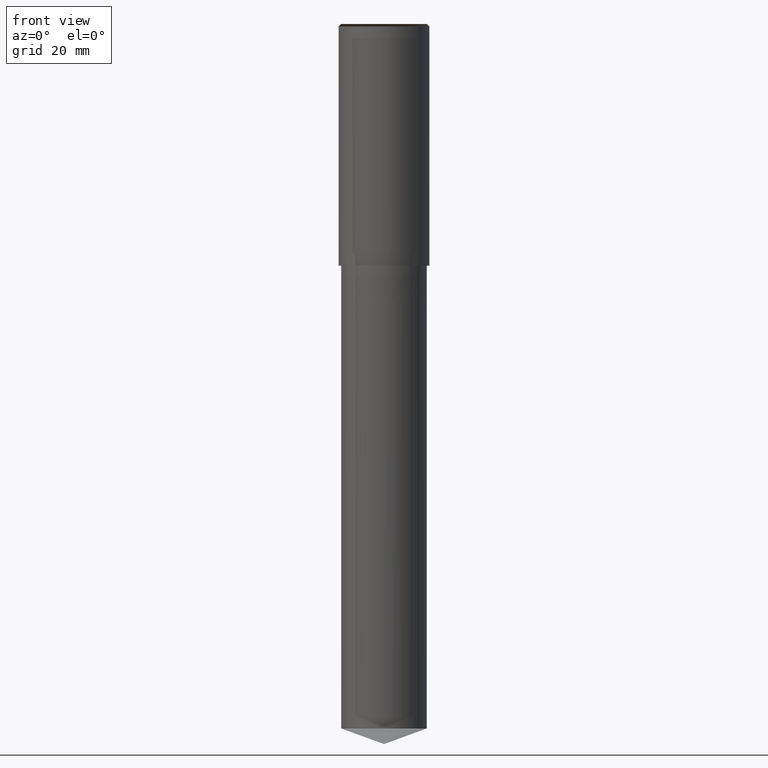
[diagram: clean part render]
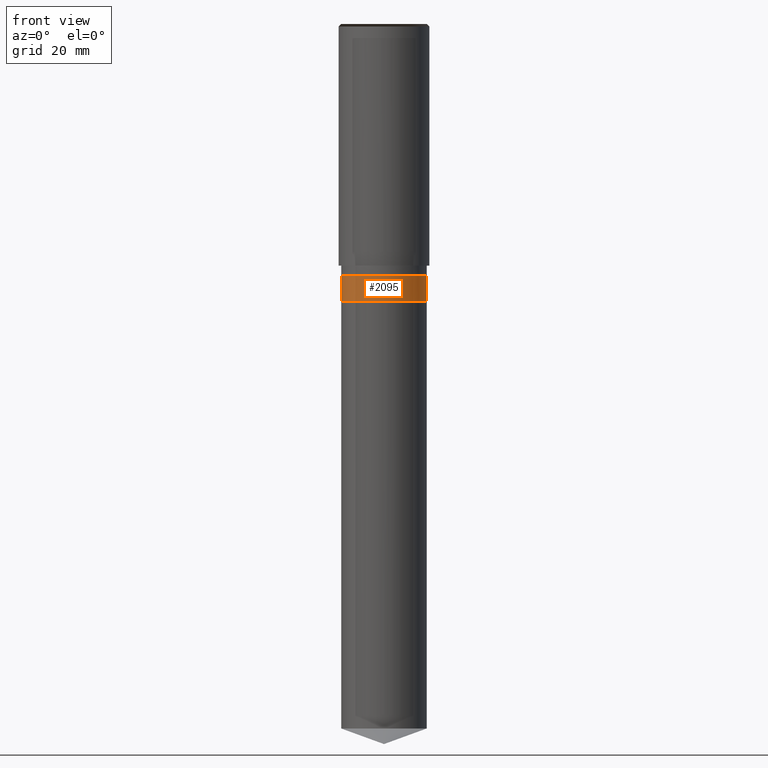
[diagram: same view with one face highlighted and labeled with its STEP entity id]
A machine part, front view. The second image highlights one B-rep face of the part: STEP entity #2095.
In plain terms, the highlighted face is a freeform B-spline surface patch.
Its self-contained STEP definition (entity closure, byte-faithful):
#1762=CARTESIAN_POINT('',(8.5,0.0,-7.0));
#1766=CARTESIAN_POINT('',(-8.5,0.0,-7.0));
#1771=CARTESIAN_POINT('',(-8.5,-8.5,-7.0));
#1772=CARTESIAN_POINT('',(0.0,-8.5,-7.0));
#1773=CARTESIAN_POINT('',(8.5,-8.5,-7.0));
#1774=CARTESIAN_POINT('',(8.5,0.0,-2.0));
#1778=CARTESIAN_POINT('',(-8.5,0.0,-2.0));
#1800=CARTESIAN_POINT('',(-8.5,-8.5,-2.0));
#1801=CARTESIAN_POINT('',(0.0,-8.5,-2.0));
#1802=CARTESIAN_POINT('',(8.5,-8.5,-2.0));
#2076=(
BOUNDED_SURFACE()
B_SPLINE_SURFACE(1,2,(
(#1766,#1771,#1772,#1773,#1762),
(#1778,#1800,#1801,#1802,#1774)
), .UNSPECIFIED.,.F.,.F.,.F.)
B_SPLINE_SURFACE_WITH_KNOTS((2,2),(3,2,3),(
0.0,1.0),(
0.0,0.5,1.0), .UNSPECIFIED.)
GEOMETRIC_REPRESENTATION_ITEM()
RATIONAL_B_SPLINE_SURFACE(((1.0,0.707106781187,1.0,0.707106781187,1.0),
(1.0,0.707106781187,1.0,0.707106781187,1.0)
))
REPRESENTATION_ITEM('')
SURFACE()
);
#2077=(
BOUNDED_CURVE()
B_SPLINE_CURVE(2,(#1762,#1773,#1772,#1771,#1766),.UNSPECIFIED.,.F.,.F.)
B_SPLINE_CURVE_WITH_KNOTS((3,2,3),
(0.0,0.5,1.0),.UNSPECIFIED.)
CURVE()
GEOMETRIC_REPRESENTATION_ITEM()
RATIONAL_B_SPLINE_CURVE((1.0,0.707106781187,1.0,0.707106781187,1.0))
REPRESENTATION_ITEM('')
);
#2078=(
BOUNDED_CURVE()
B_SPLINE_CURVE(1,(#1766,#1778),.UNSPECIFIED.,.F.,.F.)
B_SPLINE_CURVE_WITH_KNOTS((2,2),
(0.0,1.0),.UNSPECIFIED.)
CURVE()
GEOMETRIC_REPRESENTATION_ITEM()
RATIONAL_B_SPLINE_CURVE((1.0,1.0))
REPRESENTATION_ITEM('')
);
#2079=(
BOUNDED_CURVE()
B_SPLINE_CURVE(2,(#1778,#1800,#1801,#1802,#1774),.UNSPECIFIED.,.F.,.F.)
B_SPLINE_CURVE_WITH_KNOTS((3,2,3),
(0.0,0.5,1.0),.UNSPECIFIED.)
CURVE()
GEOMETRIC_REPRESENTATION_ITEM()
RATIONAL_B_SPLINE_CURVE((1.0,0.707106781187,1.0,0.707106781187,1.0))
REPRESENTATION_ITEM('')
);
#2080=(
BOUNDED_CURVE()
B_SPLINE_CURVE(1,(#1774,#1762),.UNSPECIFIED.,.F.,.F.)
B_SPLINE_CURVE_WITH_KNOTS((2,2),
(0.0,1.0),.UNSPECIFIED.)
CURVE()
GEOMETRIC_REPRESENTATION_ITEM()
RATIONAL_B_SPLINE_CURVE((1.0,1.0))
REPRESENTATION_ITEM('')
);
#2081=VERTEX_POINT('',#1762);
#2082=VERTEX_POINT('',#1766);
#2083=VERTEX_POINT('',#1774);
#2084=VERTEX_POINT('',#1778);
#2085=EDGE_CURVE('',#2081,#2082,#2077,.T.);
#2086=EDGE_CURVE('',#2082,#2084,#2078,.T.);
#2087=EDGE_CURVE('',#2084,#2083,#2079,.T.);
#2088=EDGE_CURVE('',#2083,#2081,#2080,.T.);
#2089=ORIENTED_EDGE('',*,*,#2085,.T.);
#2090=ORIENTED_EDGE('',*,*,#2086,.T.);
#2091=ORIENTED_EDGE('',*,*,#2087,.T.);
#2092=ORIENTED_EDGE('',*,*,#2088,.T.);
#2093=EDGE_LOOP('',(#2089,#2090,#2091,#2092));
#2094=FACE_OUTER_BOUND('',#2093,.T.);
#2095=ADVANCED_FACE('',(#2094),#2076,.T.);